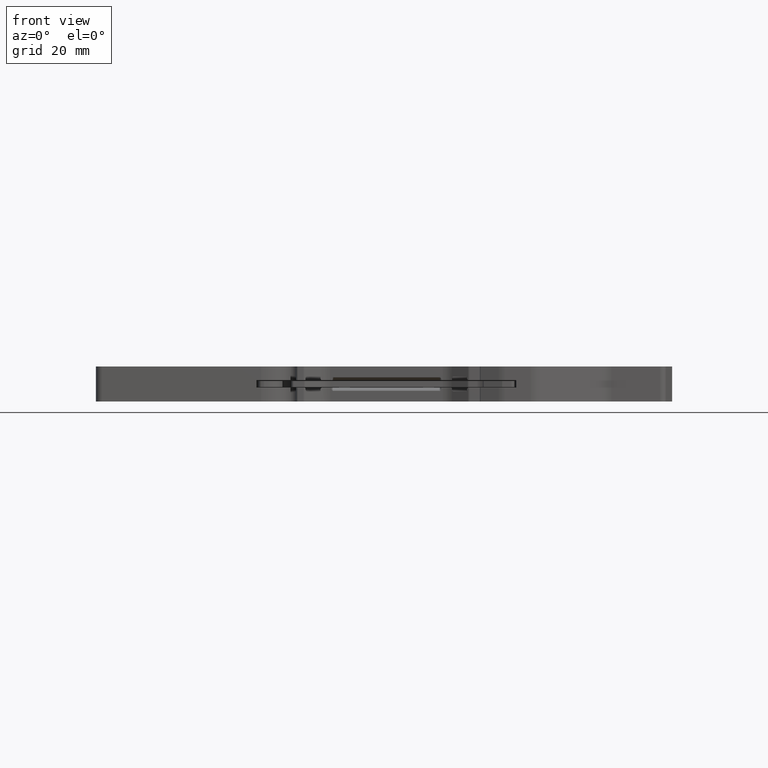
[diagram: clean part render]
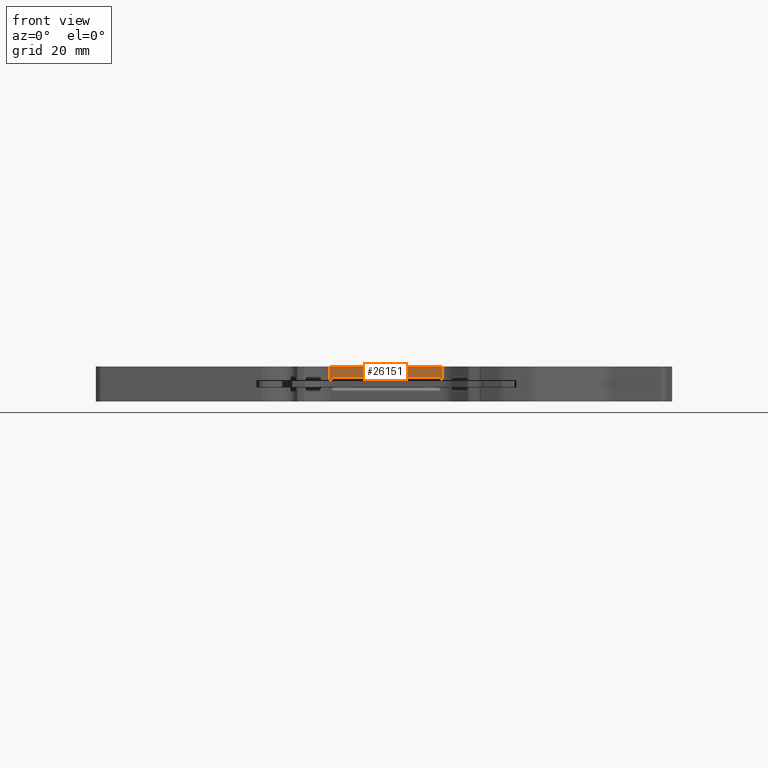
[diagram: same view with one face highlighted and labeled with its STEP entity id]
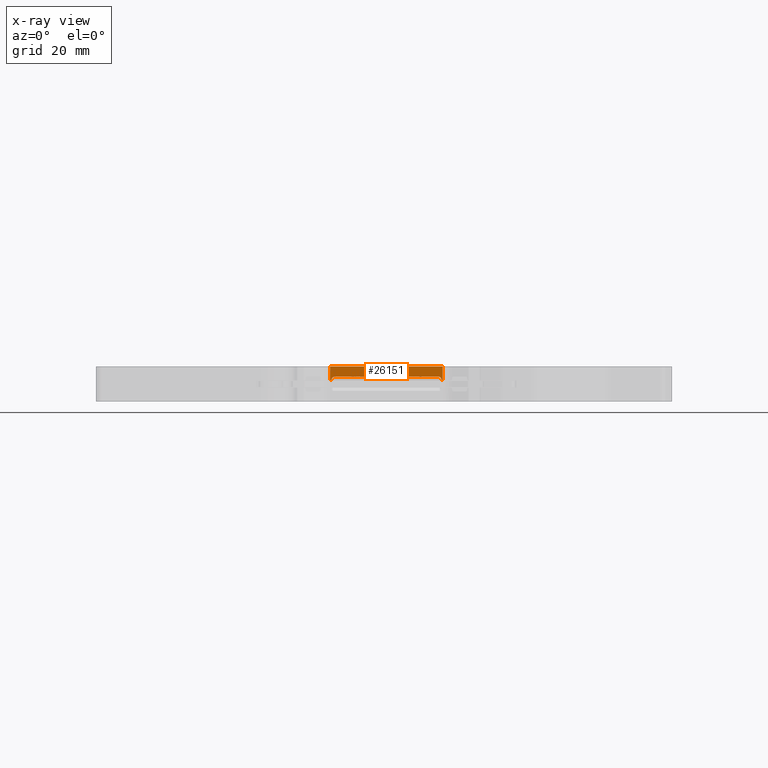
[diagram: x-ray of the same camera — body ghosted, the highlighted face saturated]
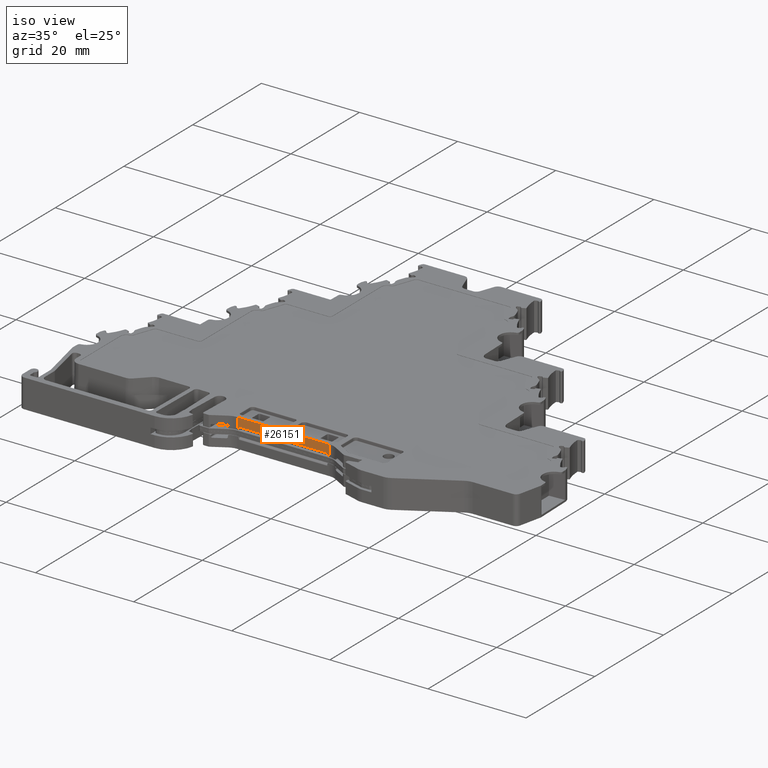
[diagram: same view with one face highlighted and labeled with its STEP entity id]
A machine part, front view. The second image highlights one B-rep face of the part: STEP entity #26151.
The next image is the same camera in x-ray: the body ghosted, the highlighted face saturated — about 0% of this face is hidden behind the body in this view.
A second angle (iso view) of the same face is appended — the face is thin or edge-on in the first view.
In plain terms, the highlighted planar face has unit normal (0, -1, 0).
Its self-contained STEP definition (entity closure, byte-faithful):
#485 = CARTESIAN_POINT ( 'NONE',  ( 1280.560778809615840, 756.1878232030099980, 5.850000000000000533 ) ) ;
#994 = LINE ( 'NONE', #21161, #5761 ) ;
#1533 = CARTESIAN_POINT ( 'NONE',  ( 1279.961858430824122, 756.1878232030099980, 4.107842712474525371 ) ) ;
#1536 = ORIENTED_EDGE ( 'NONE', *, *, #4800, .T. ) ;
#1626 = CARTESIAN_POINT ( 'NONE',  ( 1261.961858430824122, 756.1878232030099980, 3.524999999999999911 ) ) ;
#1870 = DIRECTION ( 'NONE',  ( 1.000000000000000000, 1.181223991566274142E-14, -5.362025384514610063E-14 ) ) ;
#2986 = EDGE_CURVE ( 'NONE', #6925, #20272, #17838, .T. ) ;
#3085 = VERTEX_POINT ( 'NONE', #36074 ) ;
#4028 = CARTESIAN_POINT ( 'NONE',  ( 1280.560778809615840, 756.1878232030099980, 8.673617379884039416E-16 ) ) ;
#4345 = ORIENTED_EDGE ( 'NONE', *, *, #25392, .F. ) ;
#4367 = CARTESIAN_POINT ( 'NONE',  ( 1280.196173005874925, 756.1878232030099980, 4.107842712474407243 ) ) ;
#4783 = VERTEX_POINT ( 'NONE', #13061 ) ;
#4800 = EDGE_CURVE ( 'NONE', #4783, #20272, #18723, .T. ) ;
#5419 = VECTOR ( 'NONE', #12866, 1000.000000000000000 ) ;
#5662 = ORIENTED_EDGE ( 'NONE', *, *, #27228, .F. ) ;
#5761 = VECTOR ( 'NONE', #16070, 1000.000000000000000 ) ;
#6925 = VERTEX_POINT ( 'NONE', #26576 ) ;
#7629 = CARTESIAN_POINT ( 'NONE',  ( 1280.560778809615840, 756.1878232030099980, 5.850000000000000533 ) ) ;
#8366 = AXIS2_PLACEMENT_3D ( 'NONE', #20693, #14311, #14674 ) ;
#8922 = EDGE_CURVE ( 'NONE', #37100, #3085, #24852, .T. ) ;
#9209 = PLANE ( 'NONE',  #8366 ) ;
#9509 = CARTESIAN_POINT ( 'NONE',  ( 1261.961858430824122, 756.1878232030099980, 3.542157287526344955 ) ) ;
#9633 = CARTESIAN_POINT ( 'NONE',  ( 1261.961858430824122, 756.1878232030099980, 3.873528137424849582 ) ) ;
#10839 = CARTESIAN_POINT ( 'NONE',  ( 1280.361858430823986, 756.1878232030099980, 8.673617379884039416E-16 ) ) ;
#11374 = VERTEX_POINT ( 'NONE', #9509 ) ;
#11935 = EDGE_LOOP ( 'NONE', ( #4345, #36223, #5662, #32442, #15084, #34263, #33367, #1536, #25794, #37034 ) ) ;
#12824 = VERTEX_POINT ( 'NONE', #14119 ) ;
#12866 = DIRECTION ( 'NONE',  ( 0.000000000000000000, 0.000000000000000000, 1.000000000000000000 ) ) ;
#13061 = CARTESIAN_POINT ( 'NONE',  ( 1280.560778809615840, 756.1878232030099980, 3.524999999999999911 ) ) ;
#13784 = CARTESIAN_POINT ( 'NONE',  ( 1280.361858430823986, 756.1878232030099980, 3.524999999999999911 ) ) ;
#14119 = CARTESIAN_POINT ( 'NONE',  ( 1280.361858430823986, 756.1878232030099980, 3.542157287525275144 ) ) ;
#14131 =( BOUNDED_CURVE ( )  B_SPLINE_CURVE ( 3, ( #16429, #30562, #4367, #1533 ),
 .UNSPECIFIED., .F., .F. ) 
 B_SPLINE_CURVE_WITH_KNOTS ( ( 4, 4 ),
 ( 1.570796326794852149, 3.141592653589491135 ),
 .UNSPECIFIED. ) 
 CURVE ( )  GEOMETRIC_REPRESENTATION_ITEM ( )  RATIONAL_B_SPLINE_CURVE ( ( 1.000000000000000000, 0.8047378541244256667, 0.8047378541244256667, 1.000000000000000000 ) ) 
 REPRESENTATION_ITEM ( '' )  );
#14311 = DIRECTION ( 'NONE',  ( 1.181223991566274142E-14, -1.000000000000000000, 0.000000000000000000 ) ) ;
#14610 = CARTESIAN_POINT ( 'NONE',  ( 1261.961858430824122, 756.1878232030099980, 4.025000000000000355 ) ) ;
#14674 = DIRECTION ( 'NONE',  ( 1.000000000000000000, 1.181223991566274142E-14, 0.000000000000000000 ) ) ;
#15084 = ORIENTED_EDGE ( 'NONE', *, *, #32587, .F. ) ;
#15106 = CARTESIAN_POINT ( 'NONE',  ( 1262.361858430823986, 756.1878232030099980, 4.107842712475470393 ) ) ;
#15111 = VERTEX_POINT ( 'NONE', #15248 ) ;
#15248 = CARTESIAN_POINT ( 'NONE',  ( 1261.762938052029767, 756.1878232030099980, 3.524999999999999911 ) ) ;
#16070 = DIRECTION ( 'NONE',  ( -1.000000000000000000, -1.181223991566274142E-14, 0.000000000000000000 ) ) ;
#16138 = DIRECTION ( 'NONE',  ( -0.000000000000000000, -0.000000000000000000, -1.000000000000000000 ) ) ;
#16429 = CARTESIAN_POINT ( 'NONE',  ( 1280.361858430823986, 756.1878232030099980, 3.542157287525275144 ) ) ;
#16801 =( BOUNDED_CURVE ( )  B_SPLINE_CURVE ( 3, ( #15106, #29608, #9633, #24123 ),
 .UNSPECIFIED., .F., .F. ) 
 B_SPLINE_CURVE_WITH_KNOTS ( ( 4, 4 ),
 ( -3.019806626980425790E-13, 1.570796326794692721 ),
 .UNSPECIFIED. ) 
 CURVE ( )  GEOMETRIC_REPRESENTATION_ITEM ( )  RATIONAL_B_SPLINE_CURVE ( ( 1.000000000000000000, 0.8047378541243418448, 0.8047378541243418448, 1.000000000000000000 ) ) 
 REPRESENTATION_ITEM ( '' )  );
#17838 = LINE ( 'NONE', #485, #21708 ) ;
#18368 = LINE ( 'NONE', #14610, #23276 ) ;
#18718 = EDGE_CURVE ( 'NONE', #23448, #11374, #18368, .T. ) ;
#18723 = LINE ( 'NONE', #4028, #5419 ) ;
#18905 = DIRECTION ( 'NONE',  ( 0.000000000000000000, 0.000000000000000000, 1.000000000000000000 ) ) ;
#20126 = EDGE_CURVE ( 'NONE', #15111, #6925, #29133, .T. ) ;
#20272 = VERTEX_POINT ( 'NONE', #7629 ) ;
#20693 = CARTESIAN_POINT ( 'NONE',  ( 1280.560778809615840, 756.1878232030099980, 8.673617379884039416E-16 ) ) ;
#21030 = CARTESIAN_POINT ( 'NONE',  ( 1261.762938052029767, 756.1878232030099980, 8.673617379884039416E-16 ) ) ;
#21161 = CARTESIAN_POINT ( 'NONE',  ( 1280.560778809615840, 756.1878232030099980, 3.524999999999999911 ) ) ;
#21708 = VECTOR ( 'NONE', #29522, 1000.000000000000000 ) ;
#21832 = CARTESIAN_POINT ( 'NONE',  ( 1280.560778809615840, 756.1878232030099980, 3.524999999999999911 ) ) ;
#21904 = CARTESIAN_POINT ( 'NONE',  ( 1262.361858430823986, 756.1878232030099980, 4.107842712475470393 ) ) ;
#23276 = VECTOR ( 'NONE', #18905, 1000.000000000000000 ) ;
#23448 = VERTEX_POINT ( 'NONE', #1626 ) ;
#23468 = VECTOR ( 'NONE', #30885, 1000.000000000000000 ) ;
#24123 = CARTESIAN_POINT ( 'NONE',  ( 1261.961858430824122, 756.1878232030099980, 3.542157287526344955 ) ) ;
#24286 = VERTEX_POINT ( 'NONE', #13784 ) ;
#24677 = LINE ( 'NONE', #21832, #23468 ) ;
#24852 = LINE ( 'NONE', #27872, #35195 ) ;
#25392 = EDGE_CURVE ( 'NONE', #23448, #15111, #994, .T. ) ;
#25794 = ORIENTED_EDGE ( 'NONE', *, *, #2986, .F. ) ;
#26151 = ADVANCED_FACE ( 'NONE', ( #29003 ), #9209, .T. ) ;
#26576 = CARTESIAN_POINT ( 'NONE',  ( 1261.762938052029767, 756.1878232030099980, 5.850000000000000533 ) ) ;
#26988 = VECTOR ( 'NONE', #16138, 1000.000000000000000 ) ;
#27228 = EDGE_CURVE ( 'NONE', #37100, #11374, #16801, .T. ) ;
#27555 = VECTOR ( 'NONE', #34780, 1000.000000000000000 ) ;
#27872 = CARTESIAN_POINT ( 'NONE',  ( 1280.161858430824168, 756.1878232030099980, 4.107842712474515601 ) ) ;
#28553 = EDGE_CURVE ( 'NONE', #4783, #24286, #24677, .T. ) ;
#29003 = FACE_OUTER_BOUND ( 'NONE', #11935, .T. ) ;
#29133 = LINE ( 'NONE', #21030, #27555 ) ;
#29522 = DIRECTION ( 'NONE',  ( 1.000000000000000000, 1.181223991566274142E-14, 0.000000000000000000 ) ) ;
#29608 = CARTESIAN_POINT ( 'NONE',  ( 1262.127543855773411, 756.1878232030099980, 4.107842712475608060 ) ) ;
#30257 = LINE ( 'NONE', #10839, #26988 ) ;
#30491 = EDGE_CURVE ( 'NONE', #12824, #24286, #30257, .T. ) ;
#30562 = CARTESIAN_POINT ( 'NONE',  ( 1280.361858430823986, 756.1878232030099980, 3.873528137423686957 ) ) ;
#30885 = DIRECTION ( 'NONE',  ( -1.000000000000000000, -1.181223991566274142E-14, 0.000000000000000000 ) ) ;
#32442 = ORIENTED_EDGE ( 'NONE', *, *, #8922, .T. ) ;
#32587 = EDGE_CURVE ( 'NONE', #12824, #3085, #14131, .T. ) ;
#33367 = ORIENTED_EDGE ( 'NONE', *, *, #28553, .F. ) ;
#34263 = ORIENTED_EDGE ( 'NONE', *, *, #30491, .T. ) ;
#34780 = DIRECTION ( 'NONE',  ( 0.000000000000000000, 0.000000000000000000, 1.000000000000000000 ) ) ;
#35195 = VECTOR ( 'NONE', #1870, 1000.000000000000000 ) ;
#36074 = CARTESIAN_POINT ( 'NONE',  ( 1279.961858430824122, 756.1878232030099980, 4.107842712474525371 ) ) ;
#36223 = ORIENTED_EDGE ( 'NONE', *, *, #18718, .T. ) ;
#37034 = ORIENTED_EDGE ( 'NONE', *, *, #20126, .F. ) ;
#37100 = VERTEX_POINT ( 'NONE', #21904 ) ;